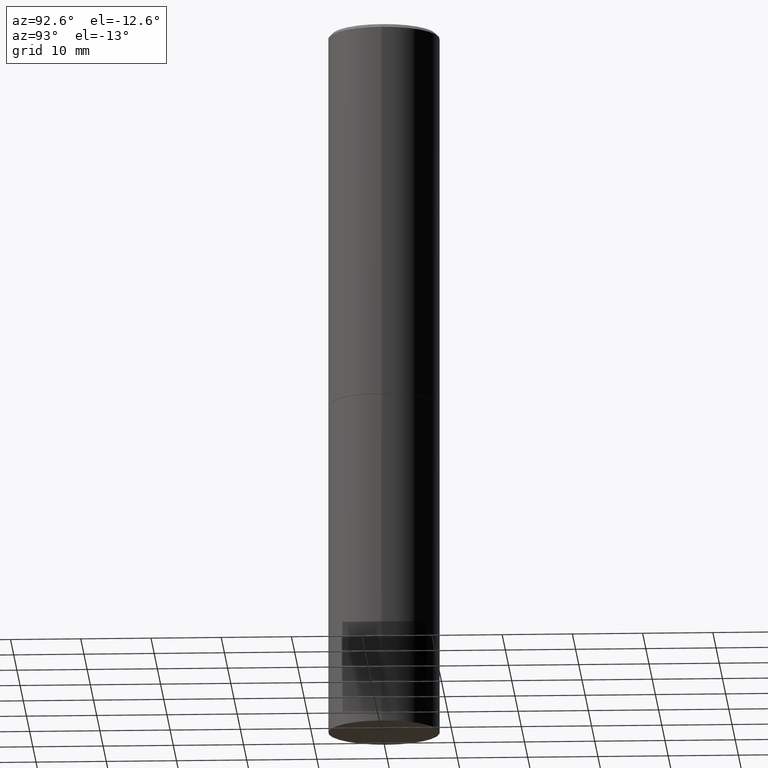
[diagram: clean part render]
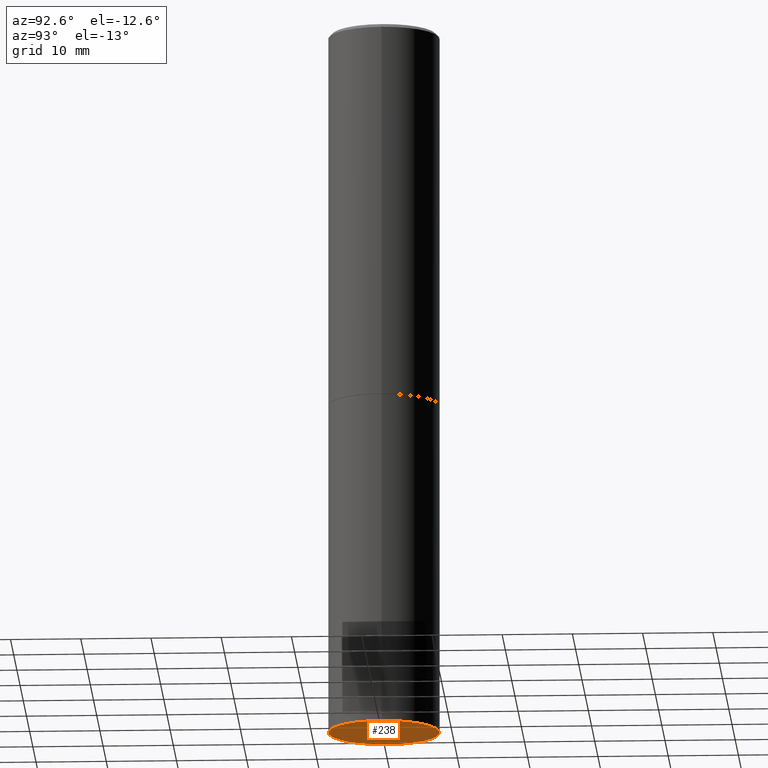
[diagram: same view with one face highlighted and labeled with its STEP entity id]
A machine part, auxiliary view. The second image highlights one B-rep face of the part: STEP entity #238.
In plain terms, the highlighted planar face has unit normal (0, -0, -1).
Its self-contained STEP definition (entity closure, byte-faithful):
#16 = DIRECTION ( 'NONE',  ( 2.438088387897960049E-29, -3.491481338843145188E-15, -1.000000000000000000 ) ) ;
#24 = EDGE_LOOP ( 'NONE', ( #354, #295 ) ) ;
#29 = DIRECTION ( 'NONE',  ( -2.445468806185136597E-29, 3.491481338843145583E-15, 1.000000000000000000 ) ) ;
#49 = CARTESIAN_POINT ( 'NONE',  ( 0.3125000000000000000, -1.614810119214954068E-14, -4.000000000000000000 ) ) ;
#66 = CIRCLE ( 'NONE', #153, 0.3125000000000000000 ) ;
#69 = PLANE ( 'NONE',  #161 ) ;
#77 = DIRECTION ( 'NONE',  ( -2.445468806185136597E-29, 3.491481338843145583E-15, 1.000000000000000000 ) ) ;
#79 = DIRECTION ( 'NONE',  ( 1.000000000000000000, -6.982962677686269077E-15, 0.000000000000000000 ) ) ;
#99 = CARTESIAN_POINT ( 'NONE',  ( -0.3125000000000000000, -8.472215550956819896E-15, -4.000000000000000000 ) ) ;
#111 = VERTEX_POINT ( 'NONE', #49 ) ;
#115 = AXIS2_PLACEMENT_3D ( 'NONE', #282, #29, #235 ) ;
#153 = AXIS2_PLACEMENT_3D ( 'NONE', #329, #77, #79 ) ;
#161 = AXIS2_PLACEMENT_3D ( 'NONE', #187, #16, #206 ) ;
#187 = CARTESIAN_POINT ( 'NONE',  ( 2.182175836777055771E-15, 0.3124999999999860667, -4.000000000000000888 ) ) ;
#206 = DIRECTION ( 'NONE',  ( -1.000000000000000000, 6.982962677686265922E-15, -4.876176775795935793E-29 ) ) ;
#210 = EDGE_CURVE ( 'NONE', #223, #111, #270, .T. ) ;
#223 = VERTEX_POINT ( 'NONE', #99 ) ;
#235 = DIRECTION ( 'NONE',  ( 1.000000000000000000, -6.982962677686269077E-15, 0.000000000000000000 ) ) ;
#238 = ADVANCED_FACE ( 'NONE', ( #269 ), #69, .T. ) ;
#269 = FACE_OUTER_BOUND ( 'NONE', #24, .T. ) ;
#270 = CIRCLE ( 'NONE', #115, 0.3125000000000000000 ) ;
#282 = CARTESIAN_POINT ( 'NONE',  ( 9.781875224740546387E-29, -1.396592535537258233E-14, -4.000000000000000000 ) ) ;
#295 = ORIENTED_EDGE ( 'NONE', *, *, #210, .F. ) ;
#329 = CARTESIAN_POINT ( 'NONE',  ( 9.781875224740546387E-29, -1.396592535537258233E-14, -4.000000000000000000 ) ) ;
#354 = ORIENTED_EDGE ( 'NONE', *, *, #364, .F. ) ;
#364 = EDGE_CURVE ( 'NONE', #111, #223, #66, .T. ) ;